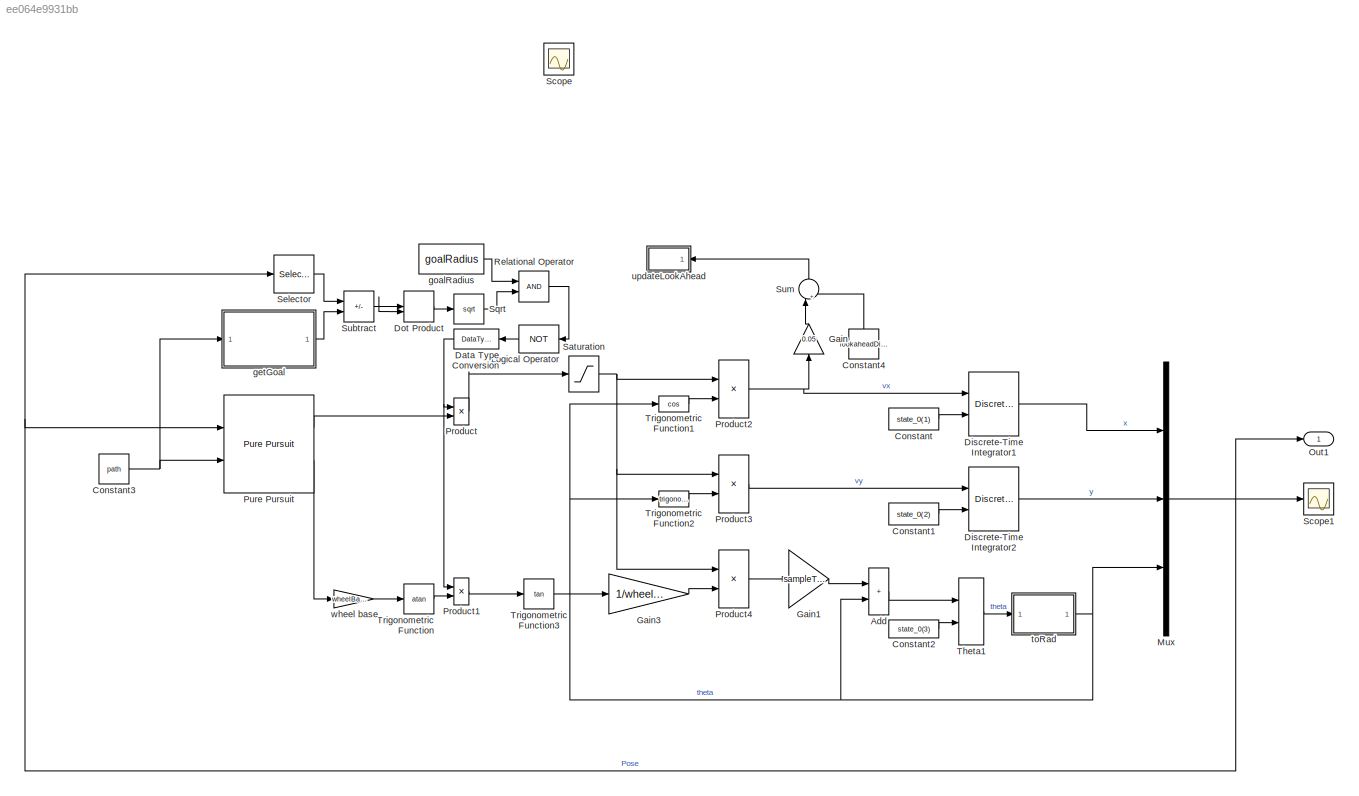
MODEL slx_ee064e9931bb
KIND model
CONFIG AbsTol = auto
CONFIG EnableMultiTasking = off
CONFIG FixedStep = auto
CONFIG MaxStep = auto
CONFIG MinStep = auto
CONFIG RelTol = 1e-3
CONFIG SampleTimeConstraint = Unconstrained
CONFIG Solver = VariableStepAuto
CONFIG SolverName = VariableStepAuto
CONFIG StartTime = 0.0
CONFIG StopTime = 10
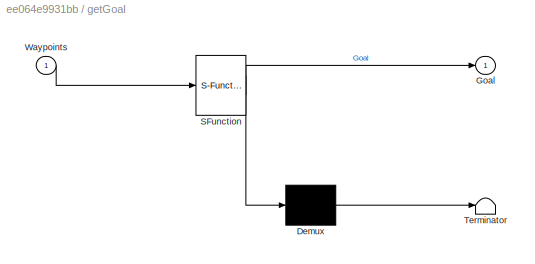
BLOCK [SubSystem]  getGoal
  ErrorFcn = Stateflow.Translate.translate
  PermitHierarchicalResolution = ExplicitOnly
  Ports = [1, 1]
  RequestExecContextInheritance = off
  SFBlockType = MATLAB Function
  TreatAsAtomicUnit = on
BLOCK [Demux]  getGoal/ Demux 
  Outputs = 1
  Ports = [1, 1]
BLOCK [S-Function]  getGoal/ SFunction 
  EnableBusSupport = on
  FunctionName = sf_sfun
  PortCounts = [1 2]
  Ports = [1, 2]
  SFcnIsStateOwnerBlock = off
  SFunctionDeploymentMode = off
  Tag = Stateflow S-Function 5
BLOCK [Terminator]  getGoal/ Terminator 
BLOCK [Outport]  getGoal/Goal
  VectorParamsAs1DForOutWhenUnconnected = off
BLOCK [Inport]  getGoal/Waypoints
BLOCK [Sum] Add
  IconShape = rectangular
  Ports = [2, 1]
BLOCK [Constant] Constant
  Value = state_0(1)
BLOCK [Constant] Constant1
  Value = state_0(2)
BLOCK [Constant] Constant2
  Value = state_0(3)
BLOCK [Constant] Constant3
  Value = path
BLOCK [Constant] Constant4
  NameLocation = right
  Value = lookaheadDist
BLOCK [DataTypeConversion] Data Type Conversion
  OutDataTypeStr = double
  RndMeth = Floor
  SaturateOnIntegerOverflow = off
BLOCK [DiscreteIntegrator] Discrete-Time Integrator1
  ICPrevOutput = DiscIntNeverNeededParam
  ICPrevScaledInput = DiscIntNeverNeededParam
  InitialConditionSetting = Auto
  InitialConditionSource = external
  Ports = [2, 1]
  SampleTime = sampleTime
BLOCK [DiscreteIntegrator] Discrete-Time Integrator2
  ICPrevOutput = DiscIntNeverNeededParam
  ICPrevScaledInput = DiscIntNeverNeededParam
  InitialConditionSetting = Auto
  InitialConditionSource = external
  Ports = [2, 1]
  SampleTime = sampleTime
BLOCK [DotProduct] Dot Product
  OutDataTypeStr = Inherit: Inherit via internal rule
BLOCK [Gain] Gain
  Gain = 0.05
  NameLocation = right
BLOCK [Gain] Gain1
  Gain = sampleTime
BLOCK [Gain] Gain3
  Gain = 1/wheelBase
BLOCK [Logic] Logical Operator
  AllPortsSameDT = off
  Operator = NOT
  OutDataTypeStr = boolean
  Ports = [1, 1]
BLOCK [Mux] Mux
  DisplayOption = bar
  Inputs = 3
  Ports = [3, 1]
BLOCK [Outport] Out1
  SampleTime = sampleTime
BLOCK [Product] Product
  Ports = [2, 1]
BLOCK [Product] Product1
  Ports = [2, 1]
BLOCK [Product] Product2
  Ports = [2, 1]
BLOCK [Product] Product3
  Ports = [2, 1]
BLOCK [Product] Product4
  Ports = [2, 1]
BLOCK [Reference] Pure Pursuit  REF=robotalgslib/Pure Pursuit
  Ports = [2, 2]
  SourceBlock = robotalgslib/Pure Pursuit
  SourceProductBaseCode = NV,RO
  SourceType = nav.slalgs.internal.PurePursuit
BLOCK [RelationalOperator] Relational Operator
  InputSameDT = off
  OutDataTypeStr = boolean
  Ports = [2, 1]
  RndMeth = Simplest
BLOCK [Saturate] Saturation
  LowerLimit = -maxLinearVelocity
  UpperLimit = maxLinearVelocity
BLOCK [Scope] Scope
  Floating = off
  IOType = viewer
  NumInputPorts = 1
  Ports = []
  ScopeSpecificationString = Simulink.scopes.TimeScopeBlockCfg('CurrentConfiguration', extmgr.ConfigurationSet(extmgr.Configuration('Core','General UI',true),extmgr.Configuration('Core','Source UI',true),extmgr.Configuration('Sources','WiredSimulink',true),extmgr.Configuration('Visuals','Time Domain',true),extmgr.Configuration('Tools','Plot Navigation',true),extmgr.Configuration('Tools','Measurements',true,'Version','2020a'))...<+19ch>
BLOCK [Scope] Scope1
  Floating = off
  NumInputPorts = 1
  Ports = [1]
  ScopeSpecificationString = Simulink.scopes.TimeScopeBlockCfg('CurrentConfiguration', extmgr.ConfigurationSet(extmgr.Configuration('Core','General UI',true),extmgr.Configuration('Core','Source UI',true),extmgr.Configuration('Sources','WiredSimulink',true,'DataLoggingVariableName','ScopeData1'),extmgr.Configuration('Visuals','Time Domain',true,'SerializedDisplays',{struct('MinYLimReal','-5.34522','MaxYLimReal','36.88651','YLa...<+1387ch>
BLOCK [Selector] Selector
  IndexOptions = Index vector (dialog)
  Indices = [1 2]
  InputPortWidth = 3
  OutputSizes = 1
  Ports = [1, 1]
BLOCK [Sqrt] Sqrt
BLOCK [Sum] Subtract
  IconShape = rectangular
  Inputs = +-
  Ports = [2, 1]
BLOCK [Sum] Sum
  Inputs = |++
  NameLocation = right
  Ports = [2, 1]
BLOCK [Delay] Theta1
  DelayLength = 1
  InitialConditionSource = Input port
  InputPortMap = u0,p4
  Ports = [2, 1]
BLOCK [Trigonometry] Trigonometric Function
  Operator = atan
  Ports = [1, 1]
BLOCK [Trigonometry] Trigonometric Function1
  Operator = cos
  Ports = [1, 1]
BLOCK [Trigonometry] Trigonometric Function2
  Ports = [1, 1]
BLOCK [Trigonometry] Trigonometric Function3
  Operator = tan
  Ports = [1, 1]
BLOCK [Constant] goalRadius
  Value = goalRadius
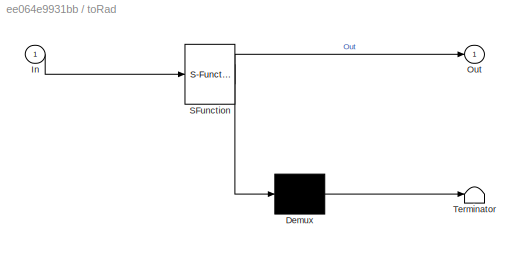
BLOCK [SubSystem] toRad
  CopyFcn = set_param(gcbh,'LinkStatus','none');
  ErrorFcn = Stateflow.Translate.translate
  PermitHierarchicalResolution = ExplicitOnly
  Ports = [1, 1]
  RequestExecContextInheritance = off
  SFBlockType = MATLAB Function
  TreatAsAtomicUnit = on
BLOCK [Demux] toRad/ Demux 
  Outputs = 1
  Ports = [1, 1]
BLOCK [S-Function] toRad/ SFunction 
  EnableBusSupport = on
  FunctionName = sf_sfun
  PortCounts = [1 2]
  Ports = [1, 2]
  SFcnIsStateOwnerBlock = off
  SFunctionDeploymentMode = off
  Tag = Stateflow S-Function 4
BLOCK [Terminator] toRad/ Terminator 
BLOCK [Inport] toRad/In
BLOCK [Outport] toRad/Out
  VectorParamsAs1DForOutWhenUnconnected = off
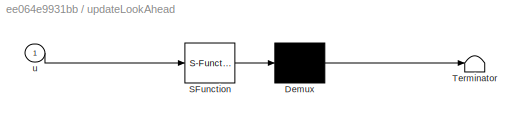
BLOCK [SubSystem] updateLookAhead
  Commented = on
  ErrorFcn = Stateflow.Translate.translate
  PermitHierarchicalResolution = ExplicitOnly
  Ports = [1]
  RequestExecContextInheritance = off
  SFBlockType = MATLAB Function
  TreatAsAtomicUnit = on
BLOCK [Demux] updateLookAhead/ Demux 
  Outputs = 1
  Ports = [1, 1]
BLOCK [S-Function] updateLookAhead/ SFunction 
  EnableBusSupport = on
  FunctionName = sf_sfun
  PortCounts = [1 1]
  Ports = [1, 1]
  SFcnIsStateOwnerBlock = off
  SFunctionDeploymentMode = off
  Tag = Stateflow S-Function 2
BLOCK [Terminator] updateLookAhead/ Terminator 
BLOCK [Inport] updateLookAhead/u
BLOCK [Gain] wheel base
  Gain = wheelBase
LINE  getGoal:1 -> Subtract:2
LINE Add:1 -> Theta1:1
LINE Constant1:1 -> Discrete-Time Integrator2:2
LINE Constant2:1 -> Theta1:2
NET Constant3:1 ->  getGoal:1, Pure Pursuit:2
LINE Constant4:1 -> Sum:2
LINE Constant:1 -> Discrete-Time Integrator1:2
NET Data Type Conversion:1 -> Product1:1, Product:1
LINE Discrete-Time Integrator1:1 -> Mux:1
LINE Discrete-Time Integrator2:1 -> Mux:2
LINE Dot Product:1 -> Sqrt:1
LINE Gain1:1 -> Add:1
LINE Gain3:1 -> Product4:2
LINE Gain:1 -> Sum:1
LINE Logical Operator:1 -> Data Type Conversion:1
NET Mux:1 -> Out1:1, Pure Pursuit:1, Scope1:1, Selector:1
LINE Product1:1 -> Trigonometric Function3:1
NET Product2:1 -> Discrete-Time Integrator1:1, Gain:1
LINE Product3:1 -> Discrete-Time Integrator2:1
LINE Product4:1 -> Gain1:1
LINE Product:1 -> Saturation:1
LINE Pure Pursuit:1 -> Product:2
LINE Pure Pursuit:2 -> wheel base:1
LINE Relational Operator:1 -> Logical Operator:1
NET Saturation:1 -> Product2:1, Product3:1, Product4:1
LINE Selector:1 -> Subtract:1
LINE Sqrt:1 -> Relational Operator:2
NET Subtract:1 -> Dot Product:1, Dot Product:2
LINE Sum:1 -> updateLookAhead:1
LINE Theta1:1 -> toRad:1
LINE Trigonometric Function1:1 -> Product2:2
LINE Trigonometric Function2:1 -> Product3:2
LINE Trigonometric Function3:1 -> Gain3:1
LINE Trigonometric Function:1 -> Product1:2
LINE goalRadius:1 -> Relational Operator:1
NET toRad:1 -> Add:2, Mux:3, Trigonometric Function1:1, Trigonometric Function2:1
LINE wheel base:1 -> Trigonometric Function:1
note: NET lines group one-source signal fan-out (src -> all destinations, sorted); 1:1 wires keep LINE
CHART updateLookAhead states=1 transitions=1
  STATE_LABEL 'eML_blk_kernel()'
  STATE_LABEL "SCRIPT:\nfunction updateLookAhead(u)\n    coder.extrinsic('set_param');\n    set_param('CurveTracking/Pure Pursuit','LookaheadDistance',u);\n"
CHART toRad states=1 transitions=1
  STATE_LABEL 'eML_blk_kernel()'
  STATE_LABEL 'SCRIPT:\nfunction Out = toRad(In)\n%#codegen\nOut = angdiff(0*In, In);\n\n\n\n'
CHART  getGoal states=1 transitions=1
  STATE_LABEL 'eML_blk_kernel()'
  STATE_LABEL "SCRIPT:\nfunction Goal = getGoal(Waypoints)\n%#codegen\nb = isnan(Waypoints);\n[rows,~] = find(b);\nridx = setdiff(1:size(Waypoints,1), sort(rows));\nGoal = [Waypoints(ridx(end), 1) Waypoints(ridx(end), 2)]';"
CHART  states=0 transitions=0
CHART  states=0 transitions=0
CHART  states=0 transitions=0
